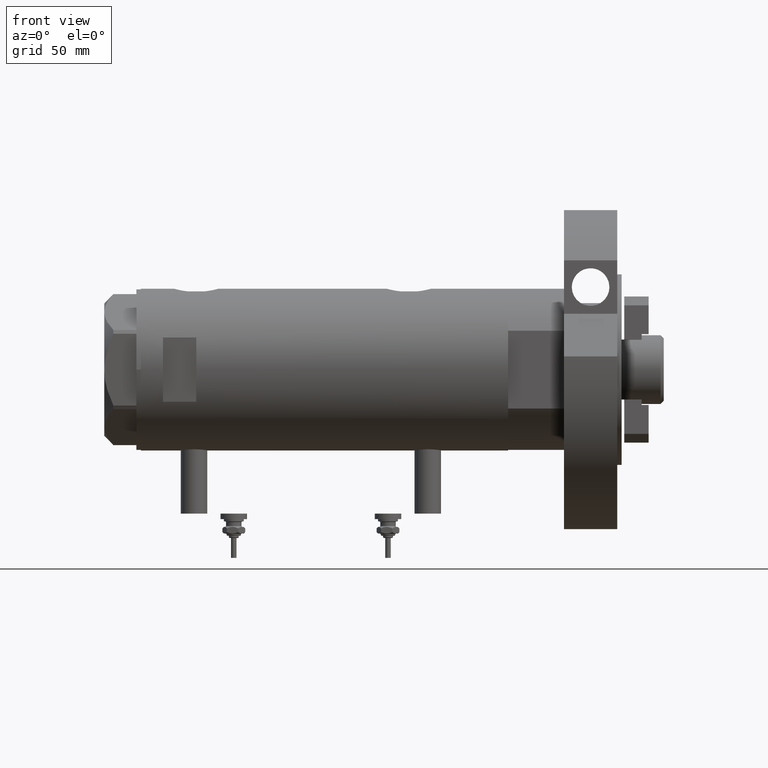
[diagram: clean part render]
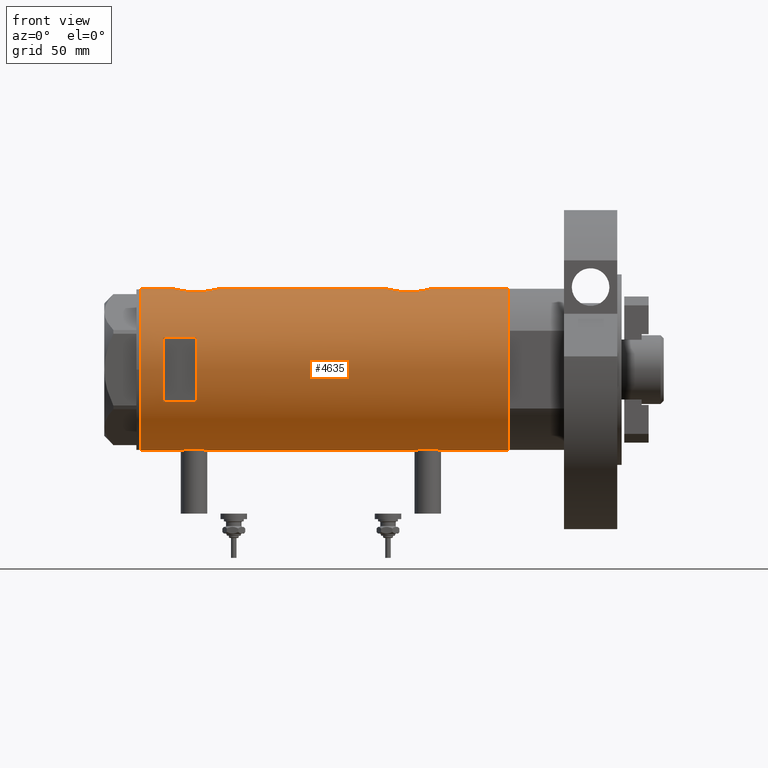
[diagram: same view with one face highlighted and labeled with its STEP entity id]
A machine part, front view. The second image highlights one B-rep face of the part: STEP entity #4635.
In plain terms, the highlighted cylindrical surface (partial cylindrical patch) has radius 36.5 mm, axis along (-1, -0, 0).
Its self-contained STEP definition (entity closure, byte-faithful):
#8 = ORIENTED_EDGE ( 'NONE', *, *, #3810, .T. ) ;
#12 = CARTESIAN_POINT ( 'NONE',  ( 36.50000000000000000, -0.5031001875915698252, -48.09999999999999432 ) ) ;
#31 = LINE ( 'NONE', #2584, #5710 ) ;
#57 = VECTOR ( 'NONE', #7226, 1000.000000000000000 ) ;
#58 = DIRECTION ( 'NONE',  ( 0.000000000000000000, 0.000000000000000000, 1.000000000000000000 ) ) ;
#79 = AXIS2_PLACEMENT_3D ( 'NONE', #4092, #6623, #5492 ) ;
#126 = EDGE_CURVE ( 'NONE', #7788, #5018, #7819, .T. ) ;
#143 = CARTESIAN_POINT ( 'NONE',  ( -36.30107494031870630, -3.820993528321237509, -41.63693846463691983 ) ) ;
#186 = EDGE_CURVE ( 'NONE', #4327, #1805, #7303, .T. ) ;
#198 = CARTESIAN_POINT ( 'NONE',  ( -35.99659093586380010, -6.041447834568789865, 60.51422412014822783 ) ) ;
#224 = CARTESIAN_POINT ( 'NONE',  ( 35.29999999999999716, -9.282241108697837362, 54.17978495245235138 ) ) ;
#246 = DIRECTION ( 'NONE',  ( 0.000000000000000000, 0.000000000000000000, 1.000000000000000000 ) ) ;
#258 = ORIENTED_EDGE ( 'NONE', *, *, #2168, .T. ) ;
#286 = CARTESIAN_POINT ( 'NONE',  ( -36.39621039793029666, -2.776267550998798850, 64.51430753106778582 ) ) ;
#328 = CARTESIAN_POINT ( 'NONE',  ( -36.26616882068471881, -4.135065845178862887, 63.60415055940097062 ) ) ;
#339 = CARTESIAN_POINT ( 'NONE',  ( 36.50000000000000000, 0.000000000000000000, 47.89999999999999858 ) ) ;
#371 = CARTESIAN_POINT ( 'NONE',  ( -36.50000000000000000, 2.196845629780489385E-16, 65.15000000000000568 ) ) ;
#406 = DIRECTION ( 'NONE',  ( 1.000000000000000000, 0.000000000000000000, 0.000000000000000000 ) ) ;
#467 = CARTESIAN_POINT ( 'NONE',  ( 36.41918031349423757, -2.473644131148929226, 67.60188345463190274 ) ) ;
#470 = CIRCLE ( 'NONE', #1542, 36.50000000000000000 ) ;
#481 = CARTESIAN_POINT ( 'NONE',  ( 0.000000000000000000, 0.000000000000000000, 57.90000000000014779 ) ) ;
#491 = CARTESIAN_POINT ( 'NONE',  ( -36.01675918113430441, -5.920026275461289345, -48.61439556517890281 ) ) ;
#525 = DIRECTION ( 'NONE',  ( 0.000000000000000000, 0.000000000000000000, 1.000000000000000000 ) ) ;
#532 = CARTESIAN_POINT ( 'NONE',  ( 35.72583162417571145, -7.484316398521975167, -31.44957356280499283 ) ) ;
#563 = CARTESIAN_POINT ( 'NONE',  ( -36.30176144752230272, -3.814344296723641836, -51.56801701950257666 ) ) ;
#607 = CARTESIAN_POINT ( 'NONE',  ( -36.21356728133256553, -4.566014386638768130, -42.32737339235254126 ) ) ;
#629 = CARTESIAN_POINT ( 'NONE',  ( -14.49137674618942739, -33.50000000000000000, 72.89999999999999147 ) ) ;
#682 = CARTESIAN_POINT ( 'NONE',  ( 36.12792682573228120, -5.214735277442337669, -46.64693117988700521 ) ) ;
#691 = CARTESIAN_POINT ( 'NONE',  ( -36.19599073318030946, -4.702920041824402375, -42.47846168323421523 ) ) ;
#696 = CARTESIAN_POINT ( 'NONE',  ( 36.09633718678917091, -5.417295330713080226, -29.69085132654786463 ) ) ;
#733 = CARTESIAN_POINT ( 'NONE',  ( -36.50000000000000000, 7.463603853851042361E-16, -40.34999999999999432 ) ) ;
#775 = CARTESIAN_POINT ( 'NONE',  ( -35.99659093586380720, -6.041447834568803188, -44.98577587985177217 ) ) ;
#794 = CARTESIAN_POINT ( 'NONE',  ( 35.29999999999999716, -9.282241108697837362, -41.82021504754764862 ) ) ;
#838 = ORIENTED_EDGE ( 'NONE', *, *, #5939, .F. ) ;
#882 = DIRECTION ( 'NONE',  ( 0.000000000000000000, 0.000000000000000000, 1.000000000000000000 ) ) ;
#910 = CARTESIAN_POINT ( 'NONE',  ( -36.35061318816141096, -3.303361544904979574, 53.59035958056982452 ) ) ;
#950 = CARTESIAN_POINT ( 'NONE',  ( -35.96816095843706762, -6.208699946936197200, 58.07503622872215487 ) ) ;
#989 = CARTESIAN_POINT ( 'NONE',  ( -36.30107494031871340, -3.820993528321226851, 63.86306153536310148 ) ) ;
#1088 = CARTESIAN_POINT ( 'NONE',  ( 36.44931971524464842, -1.985988150549293341, 67.71366860531763621 ) ) ;
#1108 = EDGE_CURVE ( 'NONE', #7788, #5231, #4147, .T. ) ;
#1130 = CARTESIAN_POINT ( 'NONE',  ( 35.79638309643554805, -7.141827709208436126, 64.91701926969550129 ) ) ;
#1139 = CIRCLE ( 'NONE', #79, 36.50000000000000000 ) ;
#1157 = CARTESIAN_POINT ( 'NONE',  ( -35.96816095843705341, -6.208699946936208747, -47.42496377127785223 ) ) ;
#1194 = CARTESIAN_POINT ( 'NONE',  ( 35.72742963626382107, -7.471989379615407323, -44.75062260412776283 ) ) ;
#1200 = CARTESIAN_POINT ( 'NONE',  ( -36.02823773219771653, -5.849994928883562650, -48.80955101485645287 ) ) ;
#1235 = CARTESIAN_POINT ( 'NONE',  ( 35.39794035667549821, -8.909777761736840773, -42.74954159089456596 ) ) ;
#1237 = CYLINDRICAL_SURFACE ( 'NONE', #7464, 36.50000000000000000 ) ;
#1280 = VERTEX_POINT ( 'NONE', #1606 ) ;
#1286 = CARTESIAN_POINT ( 'NONE',  ( 36.41918031349423757, -2.473644131148924341, -28.39811654536808661 ) ) ;
#1351 = CARTESIAN_POINT ( 'NONE',  ( 35.83108131285855791, -6.958268797611352419, 50.71369216627174126 ) ) ;
#1393 = CARTESIAN_POINT ( 'NONE',  ( 36.48960339336945680, -1.002724032967599488, 47.93775134026500950 ) ) ;
#1446 = ORIENTED_EDGE ( 'NONE', *, *, #1767, .F. ) ;
#1491 = B_SPLINE_CURVE_WITH_KNOTS ( 'NONE', 3,
 ( #7701, #6853, #8210, #1088, #467, #3020, #7540, #5592, #8171, #1762, #2388, #4317, #6892, #1130, #2084, #5288, #3344, #5334 ),
 .UNSPECIFIED., .F., .F.,
 ( 4, 2, 2, 2, 2, 2, 2, 2, 4 ),
 ( 0.01190956515753144838, 0.01339852714138287625, 0.01488748912523430584, 0.01637645110908573370, 0.01712093210101144763, 0.01786541309293716503, 0.01935437507678861718, 0.02084333706064007280, 0.02382126102834301526 ),
 .UNSPECIFIED. ) ;
#1519 = VERTEX_POINT ( 'NONE', #4677 ) ;
#1541 = DIRECTION ( 'NONE',  ( 0.000000000000000000, 0.000000000000000000, 1.000000000000000000 ) ) ;
#1542 = AXIS2_PLACEMENT_3D ( 'NONE', #4298, #525, #406 ) ;
#1547 = CIRCLE ( 'NONE', #5322, 36.50000000000000000 ) ;
#1586 = CARTESIAN_POINT ( 'NONE',  ( -36.50000000000000000, 7.463603853851042361E-16, -40.34999999999999432 ) ) ;
#1588 = CARTESIAN_POINT ( 'NONE',  ( -36.36656776002988778, -3.137002187003155473, 64.32136409273633149 ) ) ;
#1606 = CARTESIAN_POINT ( 'NONE',  ( 35.29999999999999716, -9.282241108697837362, -34.37978495245235422 ) ) ;
#1623 = CARTESIAN_POINT ( 'NONE',  ( -36.09582946723049446, -5.421573071064185179, 55.76391721629512688 ) ) ;
#1632 = ORIENTED_EDGE ( 'NONE', *, *, #8000, .F. ) ;
#1663 = CARTESIAN_POINT ( 'NONE',  ( -36.50000000000000000, -0.4082012689449559528, 52.65000000000000568 ) ) ;
#1694 = DIRECTION ( 'NONE',  ( 0.000000000000000000, 0.000000000000000000, 1.000000000000000000 ) ) ;
#1762 = CARTESIAN_POINT ( 'NONE',  ( 36.12724769814495573, -5.207618053557753868, 66.44064120488465619 ) ) ;
#1767 = EDGE_CURVE ( 'NONE', #2903, #1280, #5135, .T. ) ;
#1783 = CARTESIAN_POINT ( 'NONE',  ( 35.52320828895290106, -8.411622242316138198, -43.59772865944614040 ) ) ;
#1788 = CARTESIAN_POINT ( 'NONE',  ( -36.36635911126386844, -3.125815113635437736, -52.01605600407904006 ) ) ;
#1805 = VERTEX_POINT ( 'NONE', #7085 ) ;
#1821 = CARTESIAN_POINT ( 'NONE',  ( 35.29999999999999716, -9.282241108697837362, -41.82021504754764862 ) ) ;
#1859 = CARTESIAN_POINT ( 'NONE',  ( 35.79656810172927806, -7.133411935499478496, -45.11254878557677728 ) ) ;
#1867 = CARTESIAN_POINT ( 'NONE',  ( 36.00092304812866928, -6.029438422680413190, -30.10691844426349562 ) ) ;
#1892 = CARTESIAN_POINT ( 'NONE',  ( 36.44881677724179525, -1.995085670027224811, -47.91180345369464533 ) ) ;
#1897 = VERTEX_POINT ( 'NONE', #3371 ) ;
#2056 = VERTEX_POINT ( 'NONE', #5013 ) ;
#2061 = EDGE_CURVE ( 'NONE', #5036, #7286, #4246, .T. ) ;
#2084 = CARTESIAN_POINT ( 'NONE',  ( 35.72583162417571145, -7.484316398521971614, 64.55042643719502848 ) ) ;
#2089 = VERTEX_POINT ( 'NONE', #7716 ) ;
#2136 = CARTESIAN_POINT ( 'NONE',  ( 36.50000000000000000, -0.5031001875915698252, 47.89999999999999858 ) ) ;
#2137 = CARTESIAN_POINT ( 'NONE',  ( 0.000000000000000000, 0.000000000000000000, 72.89999999999999147 ) ) ;
#2142 = DIRECTION ( 'NONE',  ( -0.000000000000000000, -0.000000000000000000, -1.000000000000000000 ) ) ;
#2149 = CARTESIAN_POINT ( 'NONE',  ( -36.01675918113430441, -5.920026275461276910, 56.88560443482112561 ) ) ;
#2158 = VECTOR ( 'NONE', #5942, 1000.000000000000000 ) ;
#2168 = EDGE_CURVE ( 'NONE', #1519, #7286, #7115, .T. ) ;
#2182 = ORIENTED_EDGE ( 'NONE', *, *, #5724, .F. ) ;
#2196 = CARTESIAN_POINT ( 'NONE',  ( -14.49137674618942739, -33.50000000000000000, 57.89999999999999147 ) ) ;
#2219 = VECTOR ( 'NONE', #2142, 1000.000000000000000 ) ;
#2245 = CARTESIAN_POINT ( 'NONE',  ( -36.19666146462961365, -4.704890678739097609, 54.76570140489218375 ) ) ;
#2326 = CARTESIAN_POINT ( 'NONE',  ( -36.46614432713122511, -1.622933015999966200, -52.64966597386846558 ) ) ;
#2367 = CARTESIAN_POINT ( 'NONE',  ( -36.26692673949090562, -4.128477002029516285, -51.30999987432166876 ) ) ;
#2388 = CARTESIAN_POINT ( 'NONE',  ( 36.09633718678917802, -5.417295330713079338, 66.30914867345214248 ) ) ;
#2449 = CARTESIAN_POINT ( 'NONE',  ( -36.44621655743048905, -2.016281777336084158, -52.52982976699116335 ) ) ;
#2455 = CARTESIAN_POINT ( 'NONE',  ( 35.52323553852026095, -8.411295122831244697, -32.60247607048910368 ) ) ;
#2568 = CARTESIAN_POINT ( 'NONE',  ( 35.93363298843767950, -6.415574104180970849, -45.78651472888893181 ) ) ;
#2584 = CARTESIAN_POINT ( 'NONE',  ( 35.29999999999999716, -9.282241108697837362, -82.90000000000000568 ) ) ;
#2692 = CARTESIAN_POINT ( 'NONE',  ( 35.72742963626382107, -7.471989379615407323, 51.24937739587225138 ) ) ;
#2701 = CARTESIAN_POINT ( 'NONE',  ( -36.44454782745417276, -2.020757099930490241, -40.68214135579004420 ) ) ;
#2719 = CARTESIAN_POINT ( 'NONE',  ( 36.50000000000000000, 0.000000000000000000, -82.90000000000000568 ) ) ;
#2733 = CARTESIAN_POINT ( 'NONE',  ( 35.79656810172927806, -7.133411935499478496, 50.88745121442323693 ) ) ;
#2756 = CARTESIAN_POINT ( 'NONE',  ( -36.50000000000000000, -0.4136690418839307215, 65.15000000000001990 ) ) ;
#2827 = CARTESIAN_POINT ( 'NONE',  ( -14.49137674618942739, -33.50000000000000000, -82.90000000000000568 ) ) ;
#2835 = CARTESIAN_POINT ( 'NONE',  ( -36.43335814606992784, -2.212659578761317469, 64.74876399169507124 ) ) ;
#2877 = CARTESIAN_POINT ( 'NONE',  ( -36.47262891311152089, -1.427622242603853175, 64.98824629211699744 ) ) ;
#2901 = EDGE_CURVE ( 'NONE', #4374, #4724, #3555, .T. ) ;
#2903 = VERTEX_POINT ( 'NONE', #6009 ) ;
#2921 = CARTESIAN_POINT ( 'NONE',  ( -36.02782481185207075, -5.852531070448503847, 61.10277008952189703 ) ) ;
#2951 = CARTESIAN_POINT ( 'NONE',  ( -36.50000000000000000, 4.469960816887838430E-15, -82.90000000000000568 ) ) ;
#3003 = CARTESIAN_POINT ( 'NONE',  ( -36.50000000000000000, 4.469960493366092827E-15, -52.85000000000000853 ) ) ;
#3020 = CARTESIAN_POINT ( 'NONE',  ( 36.34247810649305421, -3.420510937483963065, 67.30986518401726926 ) ) ;
#3035 = DIRECTION ( 'NONE',  ( -0.000000000000000000, -4.625929269271492422E-15, 1.000000000000000000 ) ) ;
#3081 = CARTESIAN_POINT ( 'NONE',  ( 35.29999999999999716, -9.282241108697837362, 54.17978495245235138 ) ) ;
#3187 = B_SPLINE_CURVE_WITH_KNOTS ( 'NONE', 3,
 ( #3003, #6243, #3581, #2326, #2449, #3669, #8191, #1788, #3749, #563, #2367, #4882, #4339, #5017, #4932, #1200, #491, #4971, #6920, #1157, #3956, #7161, #3793, #5902, #775, #6532, #3914, #5857, #5138, #4505, #6362, #691, #607, #4466, #143, #3287, #6450, #7766, #2701, #3211, #5225, #5186, #3244, #733 ),
 .UNSPECIFIED., .F., .F.,
 ( 4, 2, 2, 2, 2, 2, 2, 2, 2, 2, 2, 2, 2, 2, 2, 2, 2, 2, 2, 2, 2, 4 ),
 ( 0.01957644481942644524, 0.02079966591703048817, 0.02202288701463452764, 0.02263449756343654390, 0.02324610811223856363, 0.02446932920984259616, 0.02569255030744663215, 0.02691577140505066468, 0.02752738195385267400, 0.02813899250265468333, 0.02936221360025868116, 0.03058543469786267552, 0.03119704524666467443, 0.03180865579546667682, 0.03303187689307068853, 0.03364348744187271173, 0.03425509799067472799, 0.03547831908827876746, 0.03670154018588280692, 0.03731315073468483012, 0.03792476128348684639, 0.03914798238109087891 ),
 .UNSPECIFIED. ) ;
#3211 = CARTESIAN_POINT ( 'NONE',  ( -36.46417279006303858, -1.628689148039105250, -40.56246061306183748 ) ) ;
#3244 = CARTESIAN_POINT ( 'NONE',  ( -36.50000000000000711, -0.4136690418839297223, -40.35000000000000853 ) ) ;
#3287 = CARTESIAN_POINT ( 'NONE',  ( -36.36656776002987357, -3.137002187003164799, -41.17863590726366851 ) ) ;
#3298 = LINE ( 'NONE', #4638, #7741 ) ;
#3335 = DIRECTION ( 'NONE',  ( 0.000000000000000000, 0.000000000000000000, 1.000000000000000000 ) ) ;
#3344 = CARTESIAN_POINT ( 'NONE',  ( 35.39807338191550201, -8.909271871950330990, 62.55080382732786148 ) ) ;
#3371 = CARTESIAN_POINT ( 'NONE',  ( -36.50000000000000000, 4.469960816887838430E-15, 82.90000000000000568 ) ) ;
#3376 = CARTESIAN_POINT ( 'NONE',  ( -35.96095902952617251, -6.249754054240892920, 58.48341234579529413 ) ) ;
#3422 = CARTESIAN_POINT ( 'NONE',  ( -36.39558535855675103, -2.764807686267996001, 53.29105881454392346 ) ) ;
#3463 = CARTESIAN_POINT ( 'NONE',  ( -35.98855750525641639, -6.088954600884528112, 57.47569773849836139 ) ) ;
#3497 = CARTESIAN_POINT ( 'NONE',  ( -36.50000000000000000, 2.196845629780489385E-16, 65.15000000000000568 ) ) ;
#3498 = CARTESIAN_POINT ( 'NONE',  ( -36.01639592019627401, -5.922235714778413040, 60.90796802426914525 ) ) ;
#3538 = CARTESIAN_POINT ( 'NONE',  ( -36.49297138689432529, -0.8222528563518540778, 65.10933112053433547 ) ) ;
#3555 = LINE ( 'NONE', #3593, #7437 ) ;
#3571 = ORIENTED_EDGE ( 'NONE', *, *, #2901, .F. ) ;
#3581 = CARTESIAN_POINT ( 'NONE',  ( -36.49315367594273596, -0.8144497809045464498, -52.81039785554752086 ) ) ;
#3593 = CARTESIAN_POINT ( 'NONE',  ( -36.50000000000000000, 4.469960816887838430E-15, -82.90000000000000568 ) ) ;
#3669 = CARTESIAN_POINT ( 'NONE',  ( -36.40915499150420231, -2.580495338846554354, -52.29605013355477183 ) ) ;
#3706 = CARTESIAN_POINT ( 'NONE',  ( 36.34184199234172041, -3.427106516421254412, -47.50740913680033373 ) ) ;
#3747 = CARTESIAN_POINT ( 'NONE',  ( 36.50000000000000000, 0.000000000000000000, -48.10000000000000142 ) ) ;
#3749 = CARTESIAN_POINT ( 'NONE',  ( -36.35061318816139675, -3.303361544904985347, -51.90964041943019680 ) ) ;
#3793 = CARTESIAN_POINT ( 'NONE',  ( -35.96794010939611042, -6.209972807992086175, -45.78444451008647320 ) ) ;
#3797 = CARTESIAN_POINT ( 'NONE',  ( 36.44931971524465553, -1.985988150549293341, -28.28633139468236379 ) ) ;
#3810 = EDGE_CURVE ( 'NONE', #2903, #5231, #5789, .T. ) ;
#3834 = FACE_OUTER_BOUND ( 'NONE', #4955, .T. ) ;
#3841 = VERTEX_POINT ( 'NONE', #629 ) ;
#3847 = CARTESIAN_POINT ( 'NONE',  ( -36.50000000000000000, 4.469960816887838430E-15, -82.90000000000000568 ) ) ;
#3870 = CARTESIAN_POINT ( 'NONE',  ( 35.83108131285855791, -6.958268797611352419, -45.28630783372827295 ) ) ;
#3881 = CARTESIAN_POINT ( 'NONE',  ( 36.50000000000000000, -0.4962708696651104701, -28.10000000000000853 ) ) ;
#3902 = CARTESIAN_POINT ( 'NONE',  ( 35.93363298843767950, -6.415574104180970849, 50.21348527111108240 ) ) ;
#3911 = DIRECTION ( 'NONE',  ( 1.000000000000000000, 0.000000000000000000, 0.000000000000000000 ) ) ;
#3914 = CARTESIAN_POINT ( 'NONE',  ( -36.02782481185207075, -5.852531070448518058, -44.39722991047811718 ) ) ;
#3919 = CARTESIAN_POINT ( 'NONE',  ( 36.29582892817134621, -3.881628320031158097, -28.87065565465010408 ) ) ;
#3938 = VECTOR ( 'NONE', #6502, 1000.000000000000000 ) ;
#3956 = CARTESIAN_POINT ( 'NONE',  ( -35.96095902952615830, -6.249754054240904466, -47.01658765420470587 ) ) ;
#3990 = CARTESIAN_POINT ( 'NONE',  ( 36.41856252531823657, -2.482507212621167358, 48.20043487153495931 ) ) ;
#4014 = CARTESIAN_POINT ( 'NONE',  ( 35.29999999999999716, -9.282241108697837362, 61.62021504754764578 ) ) ;
#4024 = ORIENTED_EDGE ( 'NONE', *, *, #5618, .F. ) ;
#4036 = LINE ( 'NONE', #2827, #2219 ) ;
#4041 = VECTOR ( 'NONE', #246, 1000.000000000000000 ) ;
#4071 = DIRECTION ( 'NONE',  ( 1.000000000000000000, 0.000000000000000000, 0.000000000000000000 ) ) ;
#4077 = LINE ( 'NONE', #2951, #7331 ) ;
#4092 = CARTESIAN_POINT ( 'NONE',  ( 0.000000000000000000, 0.000000000000000000, -82.90000000000000568 ) ) ;
#4131 = CARTESIAN_POINT ( 'NONE',  ( -36.46417279006302437, -1.628689148039105250, 64.93753938693815542 ) ) ;
#4147 = B_SPLINE_CURVE_WITH_KNOTS ( 'NONE', 3,
 ( #224, #5940, #5300, #4616, #2692, #2733, #1351, #3902, #6440, #6607, #5259, #4576, #7243, #3990, #7150, #1393, #2136, #7837 ),
 .UNSPECIFIED., .F., .F.,
 ( 4, 2, 2, 2, 2, 2, 2, 2, 4 ),
 ( -0.01189883390545606184, -0.008924125429092075873, -0.008180448310001064635, -0.007436771190910053397, -0.005949416952728041330, -0.004462062714546030130, -0.002974708476364018930, -0.001487354238182008598, 0.000000000000000000 ),
 .UNSPECIFIED. ) ;
#4190 = ORIENTED_EDGE ( 'NONE', *, *, #4950, .F. ) ;
#4216 = CARTESIAN_POINT ( 'NONE',  ( -36.46614432713123932, -1.622933015999963979, 52.85033402613154863 ) ) ;
#4226 = EDGE_CURVE ( 'NONE', #4346, #1897, #4551, .T. ) ;
#4238 = CARTESIAN_POINT ( 'NONE',  ( -36.50000000000000000, 4.469960493369248271E-15, 52.65000000000001279 ) ) ;
#4246 = B_SPLINE_CURVE_WITH_KNOTS ( 'NONE', 3,
 ( #1821, #1235, #1783, #5766, #1194, #1859, #3870, #2568, #5097, #682, #8310, #7672, #3706, #6357, #1892, #8271, #12, #3747 ),
 .UNSPECIFIED., .F., .F.,
 ( 4, 2, 2, 2, 2, 2, 2, 2, 4 ),
 ( -0.01189883390545606184, -0.008924125429092075873, -0.008180448310001064635, -0.007436771190910053397, -0.005949416952728041330, -0.004462062714546030130, -0.002974708476364018930, -0.001487354238182008598, 0.000000000000000000 ),
 .UNSPECIFIED. ) ;
#4298 = CARTESIAN_POINT ( 'NONE',  ( 0.000000000000000000, 0.000000000000000000, 82.90000000000000568 ) ) ;
#4311 = VERTEX_POINT ( 'NONE', #2196 ) ;
#4317 = CARTESIAN_POINT ( 'NONE',  ( 36.00092304812866928, -6.029438422680412302, 65.89308155573651504 ) ) ;
#4327 = VERTEX_POINT ( 'NONE', #6620 ) ;
#4339 = CARTESIAN_POINT ( 'NONE',  ( -36.16096637594732499, -4.968588355849264282, -50.41334492817760093 ) ) ;
#4346 = VERTEX_POINT ( 'NONE', #3497 ) ;
#4374 = VERTEX_POINT ( 'NONE', #1586 ) ;
#4377 = AXIS2_PLACEMENT_3D ( 'NONE', #2137, #4700, #4071 ) ;
#4393 = CARTESIAN_POINT ( 'NONE',  ( 36.12724769814495573, -5.207618053557751203, -29.55935879511536157 ) ) ;
#4466 = CARTESIAN_POINT ( 'NONE',  ( -36.26616882068469749, -4.135065845178866439, -41.89584944059903648 ) ) ;
#4484 = EDGE_CURVE ( 'NONE', #1897, #1805, #470, .T. ) ;
#4505 = CARTESIAN_POINT ( 'NONE',  ( -36.14410773716529235, -5.085921866747748155, -42.96164121579527517 ) ) ;
#4551 = LINE ( 'NONE', #5909, #3938 ) ;
#4576 = CARTESIAN_POINT ( 'NONE',  ( 36.29527920868844859, -3.886508670267140975, 48.67283724169136860 ) ) ;
#4616 = CARTESIAN_POINT ( 'NONE',  ( 35.69273631926343882, -7.635692914629145456, 51.43799804348507365 ) ) ;
#4635 = ADVANCED_FACE ( 'NONE', ( #3834, #6407 ), #1237, .T. ) ;
#4638 = CARTESIAN_POINT ( 'NONE',  ( 14.49137674618942739, -33.50000000000000000, -82.90000000000000568 ) ) ;
#4656 = ORIENTED_EDGE ( 'NONE', *, *, #5425, .F. ) ;
#4677 = CARTESIAN_POINT ( 'NONE',  ( 36.50000000000000000, 0.000000000000000000, -82.90000000000000568 ) ) ;
#4700 = DIRECTION ( 'NONE',  ( -0.000000000000000000, 0.000000000000000000, -1.000000000000000000 ) ) ;
#4714 = CARTESIAN_POINT ( 'NONE',  ( -36.19599073318029525, -4.702920041824397934, 63.02153831676577056 ) ) ;
#4724 = VERTEX_POINT ( 'NONE', #4238 ) ;
#4761 = CARTESIAN_POINT ( 'NONE',  ( -35.96087392089862789, -6.250243747806507599, 59.30917490776180045 ) ) ;
#4806 = CARTESIAN_POINT ( 'NONE',  ( -36.50000000000000000, 4.469960493369248271E-15, 52.65000000000001279 ) ) ;
#4882 = CARTESIAN_POINT ( 'NONE',  ( -36.19666146462958523, -4.704890678739107379, -50.73429859510781625 ) ) ;
#4932 = CARTESIAN_POINT ( 'NONE',  ( -36.06605150775667568, -5.613853192123352542, -49.37765688272543940 ) ) ;
#4950 = EDGE_CURVE ( 'NONE', #4327, #5018, #1491, .T. ) ;
#4955 = EDGE_LOOP ( 'NONE', ( #7419, #5086, #258, #5898, #6467, #1446, #8, #5352, #6661, #4190, #8088, #6929, #6146, #4024, #3571, #2182 ) ) ;
#4971 = CARTESIAN_POINT ( 'NONE',  ( -35.99695583620881223, -6.039273428153914658, -48.22224444987753600 ) ) ;
#5013 = CARTESIAN_POINT ( 'NONE',  ( 14.49137674618942739, -33.50000000000000000, 72.89999999999999147 ) ) ;
#5017 = CARTESIAN_POINT ( 'NONE',  ( -36.09582946723049446, -5.421573071064202054, -49.73608278370488023 ) ) ;
#5018 = VERTEX_POINT ( 'NONE', #4014 ) ;
#5022 = CARTESIAN_POINT ( 'NONE',  ( 35.39807338191550201, -8.909271871950332766, -33.44919617267214562 ) ) ;
#5036 = VERTEX_POINT ( 'NONE', #794 ) ;
#5086 = ORIENTED_EDGE ( 'NONE', *, *, #6652, .T. ) ;
#5097 = CARTESIAN_POINT ( 'NONE',  ( 36.00068527486602221, -6.030855700422095289, -46.09201327127355086 ) ) ;
#5135 = B_SPLINE_CURVE_WITH_KNOTS ( 'NONE', 3,
 ( #8240, #3881, #8049, #3797, #1286, #5778, #3919, #7680, #6412, #4393, #696, #1867, #7006, #5698, #532, #2455, #5022, #6969 ),
 .UNSPECIFIED., .F., .F.,
 ( 4, 2, 2, 2, 2, 2, 2, 2, 4 ),
 ( 0.01190956515753144491, 0.01339852714138289880, 0.01488748912523435095, 0.01637645110908580309, 0.01712093210101153090, 0.01786541309293725524, 0.01935437507678869698, 0.02084333706064013872, 0.02382126102834301179 ),
 .UNSPECIFIED. ) ;
#5138 = CARTESIAN_POINT ( 'NONE',  ( -36.09514898390870741, -5.426114745500162151, -43.47161347053861391 ) ) ;
#5186 = CARTESIAN_POINT ( 'NONE',  ( -36.49297138689432529, -0.8222528563518524125, -40.39066887946565743 ) ) ;
#5225 = CARTESIAN_POINT ( 'NONE',  ( -36.47262891311152799, -1.427622242603851843, -40.51175370788298835 ) ) ;
#5231 = VERTEX_POINT ( 'NONE', #339 ) ;
#5257 = VECTOR ( 'NONE', #6624, 1000.000000000000000 ) ;
#5259 = CARTESIAN_POINT ( 'NONE',  ( 36.18850502651836365, -4.779575967213807175, 49.10220847109845721 ) ) ;
#5279 = CARTESIAN_POINT ( 'NONE',  ( 35.29999999999999716, -9.282241108697837362, -82.90000000000000568 ) ) ;
#5288 = CARTESIAN_POINT ( 'NONE',  ( 35.52323553852026095, -8.411295122831241144, 63.39752392951088211 ) ) ;
#5300 = CARTESIAN_POINT ( 'NONE',  ( 35.52320828895290106, -8.411622242316138198, 52.40227134055386671 ) ) ;
#5302 = CARTESIAN_POINT ( 'NONE',  ( 36.50000000000000000, 0.000000000000000000, -82.90000000000000568 ) ) ;
#5322 = AXIS2_PLACEMENT_3D ( 'NONE', #481, #3035, #6147 ) ;
#5334 = CARTESIAN_POINT ( 'NONE',  ( 35.29999999999999716, -9.282241108697837362, 61.62021504754764578 ) ) ;
#5352 = ORIENTED_EDGE ( 'NONE', *, *, #1108, .F. ) ;
#5361 = CARTESIAN_POINT ( 'NONE',  ( -36.36635911126388976, -3.125815113635431075, 53.48394399592097415 ) ) ;
#5407 = CARTESIAN_POINT ( 'NONE',  ( -36.44454782745417276, -2.020757099930493350, 64.81785864420996290 ) ) ;
#5425 = EDGE_CURVE ( 'NONE', #2089, #2056, #3298, .T. ) ;
#5449 = CARTESIAN_POINT ( 'NONE',  ( -36.44621655743048905, -2.016281777336080161, 52.97017023300883665 ) ) ;
#5462 = EDGE_LOOP ( 'NONE', ( #6520, #838, #1632, #4656 ) ) ;
#5491 = CARTESIAN_POINT ( 'NONE',  ( -36.16125812922425098, -4.962923794285019063, 62.70446085910759138 ) ) ;
#5492 = DIRECTION ( 'NONE',  ( 1.000000000000000000, 0.000000000000000000, 0.000000000000000000 ) ) ;
#5565 = EDGE_CURVE ( 'NONE', #5036, #1280, #31, .T. ) ;
#5592 = CARTESIAN_POINT ( 'NONE',  ( 36.21540437201188922, -4.554727782332259167, 66.80597629088626377 ) ) ;
#5601 = B_SPLINE_CURVE_WITH_KNOTS ( 'NONE', 3,
 ( #4806, #1663, #8030, #4216, #5449, #6622, #3422, #5361, #910, #6793, #6074, #2245, #8071, #1623, #7939, #5997, #2149, #7980, #3463, #950, #3376, #4761, #5954, #7391, #198, #3498, #2921, #6035, #7348, #6750, #5491, #4714, #7301, #328, #989, #1588, #286, #2835, #5407, #4131, #2877, #3538, #2756, #371 ),
 .UNSPECIFIED., .F., .F.,
 ( 4, 2, 2, 2, 2, 2, 2, 2, 2, 2, 2, 2, 2, 2, 2, 2, 2, 2, 2, 2, 2, 4 ),
 ( 0.01957644481942640707, 0.02079966591703042919, 0.02202288701463445131, 0.02263449756343646410, 0.02324610811223847689, 0.02446932920984250248, 0.02569255030744652807, 0.02691577140505055366, 0.02752738195385255604, 0.02813899250265455843, 0.02936221360025858054, 0.03058543469786260266, 0.03119704524666461545, 0.03180865579546662825, 0.03303187689307066771, 0.03364348744187267704, 0.03425509799067469330, 0.03547831908827872582, 0.03670154018588275141, 0.03731315073468476073, 0.03792476128348677700, 0.03914798238109080952 ),
 .UNSPECIFIED. ) ;
#5618 = EDGE_CURVE ( 'NONE', #4724, #4346, #5601, .T. ) ;
#5698 = CARTESIAN_POINT ( 'NONE',  ( 35.79638309643554095, -7.141827709208429020, -31.08298073030451292 ) ) ;
#5710 = VECTOR ( 'NONE', #1541, 1000.000000000000000 ) ;
#5724 = EDGE_CURVE ( 'NONE', #7911, #4374, #3187, .T. ) ;
#5766 = CARTESIAN_POINT ( 'NONE',  ( 35.69273631926343882, -7.635692914629145456, -44.56200195651491214 ) ) ;
#5778 = CARTESIAN_POINT ( 'NONE',  ( 36.34247810649306132, -3.420510937483960845, -28.69013481598272719 ) ) ;
#5789 = LINE ( 'NONE', #2719, #57 ) ;
#5847 = CARTESIAN_POINT ( 'NONE',  ( -36.50000000000000000, 4.469960493366092827E-15, -52.85000000000000853 ) ) ;
#5857 = CARTESIAN_POINT ( 'NONE',  ( -36.06543684817881257, -5.617774235967372576, -43.83045552028299596 ) ) ;
#5898 = ORIENTED_EDGE ( 'NONE', *, *, #2061, .F. ) ;
#5902 = CARTESIAN_POINT ( 'NONE',  ( -35.98821803976953504, -6.090959022952123547, -45.18426116850582730 ) ) ;
#5909 = CARTESIAN_POINT ( 'NONE',  ( -36.50000000000000000, 4.469960816887838430E-15, -82.90000000000000568 ) ) ;
#5939 = EDGE_CURVE ( 'NONE', #3841, #4311, #4036, .T. ) ;
#5940 = CARTESIAN_POINT ( 'NONE',  ( 35.39794035667549821, -8.909777761736840773, 53.25045840910545536 ) ) ;
#5942 = DIRECTION ( 'NONE',  ( 0.000000000000000000, 0.000000000000000000, 1.000000000000000000 ) ) ;
#5954 = CARTESIAN_POINT ( 'NONE',  ( -35.96794010939611042, -6.209972807992070187, 59.71555548991352680 ) ) ;
#5997 = CARTESIAN_POINT ( 'NONE',  ( -36.02823773219771653, -5.849994928883547551, 56.69044898514355424 ) ) ;
#6009 = CARTESIAN_POINT ( 'NONE',  ( 36.50000000000000000, 4.344611676915099379E-19, -28.10000000000000142 ) ) ;
#6035 = CARTESIAN_POINT ( 'NONE',  ( -36.06543684817879836, -5.617774235967360141, 61.66954447971700404 ) ) ;
#6074 = CARTESIAN_POINT ( 'NONE',  ( -36.26692673949090562, -4.128477002029507403, 54.19000012567833835 ) ) ;
#6134 = EDGE_CURVE ( 'NONE', #4311, #2089, #1547, .T. ) ;
#6146 = ORIENTED_EDGE ( 'NONE', *, *, #4226, .F. ) ;
#6147 = DIRECTION ( 'NONE',  ( 1.776356839400250465E-15, 1.000000000000000000, 4.562560375171875891E-15 ) ) ;
#6243 = CARTESIAN_POINT ( 'NONE',  ( -36.49999999999999289, -0.4082012689449579512, -52.85000000000000853 ) ) ;
#6357 = CARTESIAN_POINT ( 'NONE',  ( 36.41856252531823657, -2.482507212621167358, -47.79956512846506200 ) ) ;
#6360 = CARTESIAN_POINT ( 'NONE',  ( 0.000000000000000000, 0.000000000000000000, -82.90000000000000568 ) ) ;
#6362 = CARTESIAN_POINT ( 'NONE',  ( -36.16125812922425098, -4.962923794285021728, -42.79553914089240152 ) ) ;
#6400 = CIRCLE ( 'NONE', #4377, 36.50000000000000000 ) ;
#6407 = FACE_BOUND ( 'NONE', #5462, .T. ) ;
#6412 = CARTESIAN_POINT ( 'NONE',  ( 36.18674680775576746, -4.776679548204623593, -29.31107683068752223 ) ) ;
#6440 = CARTESIAN_POINT ( 'NONE',  ( 36.00068527486602221, -6.030855700422095289, 49.90798672872647046 ) ) ;
#6450 = CARTESIAN_POINT ( 'NONE',  ( -36.39621039793030377, -2.776267550998805511, -40.98569246893223550 ) ) ;
#6467 = ORIENTED_EDGE ( 'NONE', *, *, #5565, .T. ) ;
#6494 = VERTEX_POINT ( 'NONE', #3847 ) ;
#6496 = CARTESIAN_POINT ( 'NONE',  ( 36.50000000000000000, 0.000000000000000000, -48.10000000000000142 ) ) ;
#6502 = DIRECTION ( 'NONE',  ( 0.000000000000000000, 0.000000000000000000, 1.000000000000000000 ) ) ;
#6506 = CARTESIAN_POINT ( 'NONE',  ( 36.50000000000000000, 0.000000000000000000, -82.90000000000000568 ) ) ;
#6520 = ORIENTED_EDGE ( 'NONE', *, *, #6134, .F. ) ;
#6532 = CARTESIAN_POINT ( 'NONE',  ( -36.01639592019626690, -5.922235714778424587, -44.59203197573086186 ) ) ;
#6607 = CARTESIAN_POINT ( 'NONE',  ( 36.12792682573228120, -5.214735277442337669, 49.35306882011299479 ) ) ;
#6620 = CARTESIAN_POINT ( 'NONE',  ( 36.50000000000000000, 4.344604608721388599E-19, 67.90000000000000568 ) ) ;
#6622 = CARTESIAN_POINT ( 'NONE',  ( -36.40915499150420231, -2.580495338846549025, 53.20394986644524238 ) ) ;
#6623 = DIRECTION ( 'NONE',  ( 0.000000000000000000, 0.000000000000000000, 1.000000000000000000 ) ) ;
#6624 = DIRECTION ( 'NONE',  ( 0.000000000000000000, 0.000000000000000000, 1.000000000000000000 ) ) ;
#6652 = EDGE_CURVE ( 'NONE', #6494, #1519, #1139, .T. ) ;
#6661 = ORIENTED_EDGE ( 'NONE', *, *, #126, .T. ) ;
#6750 = CARTESIAN_POINT ( 'NONE',  ( -36.14410773716529945, -5.085921866747741049, 62.53835878420471772 ) ) ;
#6793 = CARTESIAN_POINT ( 'NONE',  ( -36.30176144752230982, -3.814344296723633843, 53.93198298049745176 ) ) ;
#6853 = CARTESIAN_POINT ( 'NONE',  ( 36.50000000000000000, -0.4962708696651115803, 67.90000000000000568 ) ) ;
#6866 = EDGE_CURVE ( 'NONE', #6494, #7911, #4077, .T. ) ;
#6892 = CARTESIAN_POINT ( 'NONE',  ( 35.93373217836898448, -6.415110096330619349, 65.58704266355093182 ) ) ;
#6920 = CARTESIAN_POINT ( 'NONE',  ( -35.98855750525640929, -6.088954600884540547, -48.02430226150165993 ) ) ;
#6929 = ORIENTED_EDGE ( 'NONE', *, *, #4484, .F. ) ;
#6969 = CARTESIAN_POINT ( 'NONE',  ( 35.29999999999999716, -9.282241108697837362, -34.37978495245235422 ) ) ;
#7006 = CARTESIAN_POINT ( 'NONE',  ( 35.93373217836898448, -6.415110096330614020, -30.41295733644907173 ) ) ;
#7085 = CARTESIAN_POINT ( 'NONE',  ( 36.50000000000000000, 0.000000000000000000, 82.90000000000000568 ) ) ;
#7115 = LINE ( 'NONE', #5302, #2158 ) ;
#7150 = CARTESIAN_POINT ( 'NONE',  ( 36.44881677724179525, -1.995085670027224811, 48.08819654630536178 ) ) ;
#7161 = CARTESIAN_POINT ( 'NONE',  ( -35.96087392089862078, -6.250243747806522698, -46.19082509223819244 ) ) ;
#7226 = DIRECTION ( 'NONE',  ( 0.000000000000000000, 0.000000000000000000, 1.000000000000000000 ) ) ;
#7243 = CARTESIAN_POINT ( 'NONE',  ( 36.34184199234172041, -3.427106516421254412, 48.49259086319967338 ) ) ;
#7286 = VERTEX_POINT ( 'NONE', #6496 ) ;
#7301 = CARTESIAN_POINT ( 'NONE',  ( -36.21356728133256553, -4.566014386638760136, 63.17262660764745874 ) ) ;
#7303 = LINE ( 'NONE', #6506, #4041 ) ;
#7331 = VECTOR ( 'NONE', #1694, 1000.000000000000000 ) ;
#7348 = CARTESIAN_POINT ( 'NONE',  ( -36.09514898390869320, -5.426114745500152381, 62.02838652946137188 ) ) ;
#7391 = CARTESIAN_POINT ( 'NONE',  ( -35.98821803976955636, -6.090959022952108448, 60.31573883149418691 ) ) ;
#7419 = ORIENTED_EDGE ( 'NONE', *, *, #6866, .F. ) ;
#7437 = VECTOR ( 'NONE', #882, 1000.000000000000000 ) ;
#7464 = AXIS2_PLACEMENT_3D ( 'NONE', #6360, #58, #3911 ) ;
#7540 = CARTESIAN_POINT ( 'NONE',  ( 36.29582892817135331, -3.881628320031160762, 67.12934434534989236 ) ) ;
#7672 = CARTESIAN_POINT ( 'NONE',  ( 36.29527920868844859, -3.886508670267140975, -47.32716275830865982 ) ) ;
#7680 = CARTESIAN_POINT ( 'NONE',  ( 36.21540437201188922, -4.554727782332255615, -29.19402370911373978 ) ) ;
#7701 = CARTESIAN_POINT ( 'NONE',  ( 36.50000000000000000, 4.344604608721388599E-19, 67.90000000000000568 ) ) ;
#7716 = CARTESIAN_POINT ( 'NONE',  ( 14.49137674618942739, -33.50000000000000000, 57.89999999999999147 ) ) ;
#7741 = VECTOR ( 'NONE', #3335, 1000.000000000000000 ) ;
#7766 = CARTESIAN_POINT ( 'NONE',  ( -36.43335814606994205, -2.212659578761328127, -40.75123600830492165 ) ) ;
#7788 = VERTEX_POINT ( 'NONE', #3081 ) ;
#7819 = LINE ( 'NONE', #5279, #5257 ) ;
#7837 = CARTESIAN_POINT ( 'NONE',  ( 36.50000000000000000, 0.000000000000000000, 47.89999999999999858 ) ) ;
#7911 = VERTEX_POINT ( 'NONE', #5847 ) ;
#7939 = CARTESIAN_POINT ( 'NONE',  ( -36.06605150775668278, -5.613853192123342772, 56.12234311727456770 ) ) ;
#7980 = CARTESIAN_POINT ( 'NONE',  ( -35.99695583620880512, -6.039273428153901335, 57.27775555012245690 ) ) ;
#8000 = EDGE_CURVE ( 'NONE', #2056, #3841, #6400, .T. ) ;
#8030 = CARTESIAN_POINT ( 'NONE',  ( -36.49315367594273596, -0.8144497809045454506, 52.68960214445250045 ) ) ;
#8049 = CARTESIAN_POINT ( 'NONE',  ( 36.48988302519020976, -0.9927202255321161406, -28.13673010588698631 ) ) ;
#8071 = CARTESIAN_POINT ( 'NONE',  ( -36.16096637594733210, -4.968588355849251847, 55.08665507182242749 ) ) ;
#8088 = ORIENTED_EDGE ( 'NONE', *, *, #186, .T. ) ;
#8171 = CARTESIAN_POINT ( 'NONE',  ( 36.18674680775578167, -4.776679548204628922, 66.68892316931247422 ) ) ;
#8191 = CARTESIAN_POINT ( 'NONE',  ( -36.39558535855673682, -2.764807686268002218, -52.20894118545612628 ) ) ;
#8210 = CARTESIAN_POINT ( 'NONE',  ( 36.48988302519020266, -0.9927202255321159186, 67.86326989411300303 ) ) ;
#8240 = CARTESIAN_POINT ( 'NONE',  ( 36.50000000000000000, 4.344611676915099379E-19, -28.10000000000000142 ) ) ;
#8271 = CARTESIAN_POINT ( 'NONE',  ( 36.48960339336945680, -1.002724032967599488, -48.06224865973496208 ) ) ;
#8310 = CARTESIAN_POINT ( 'NONE',  ( 36.18850502651836365, -4.779575967213807175, -46.89779152890154279 ) ) ;